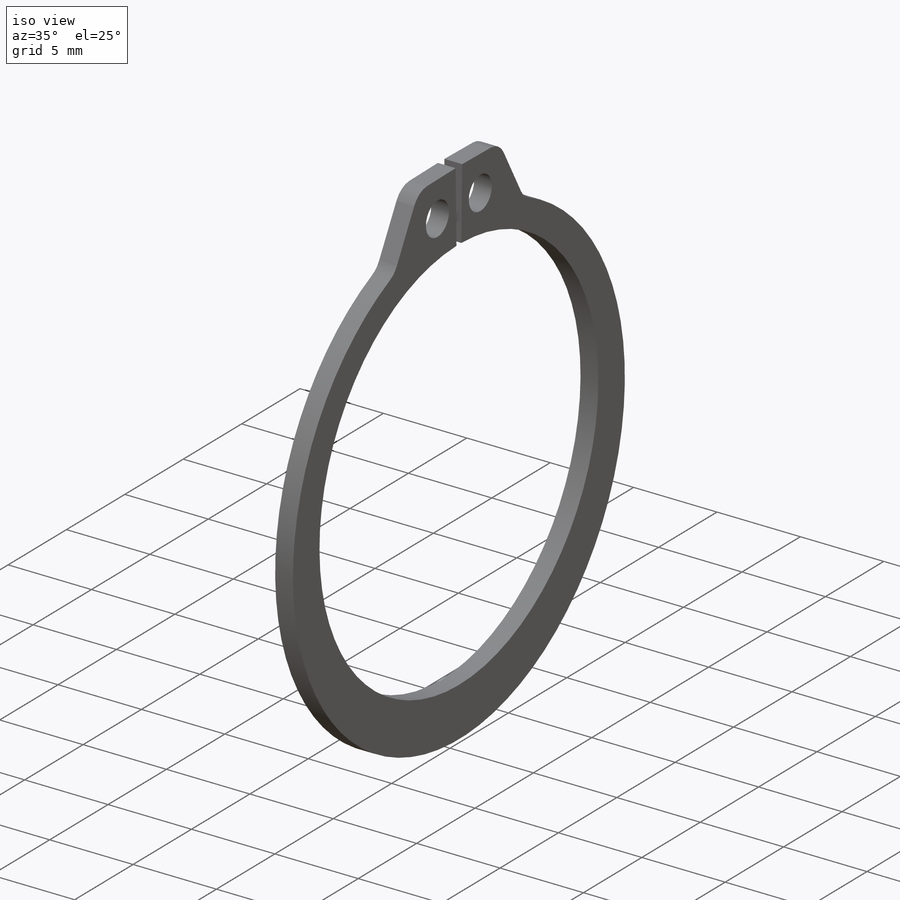
[diagram: iso view]
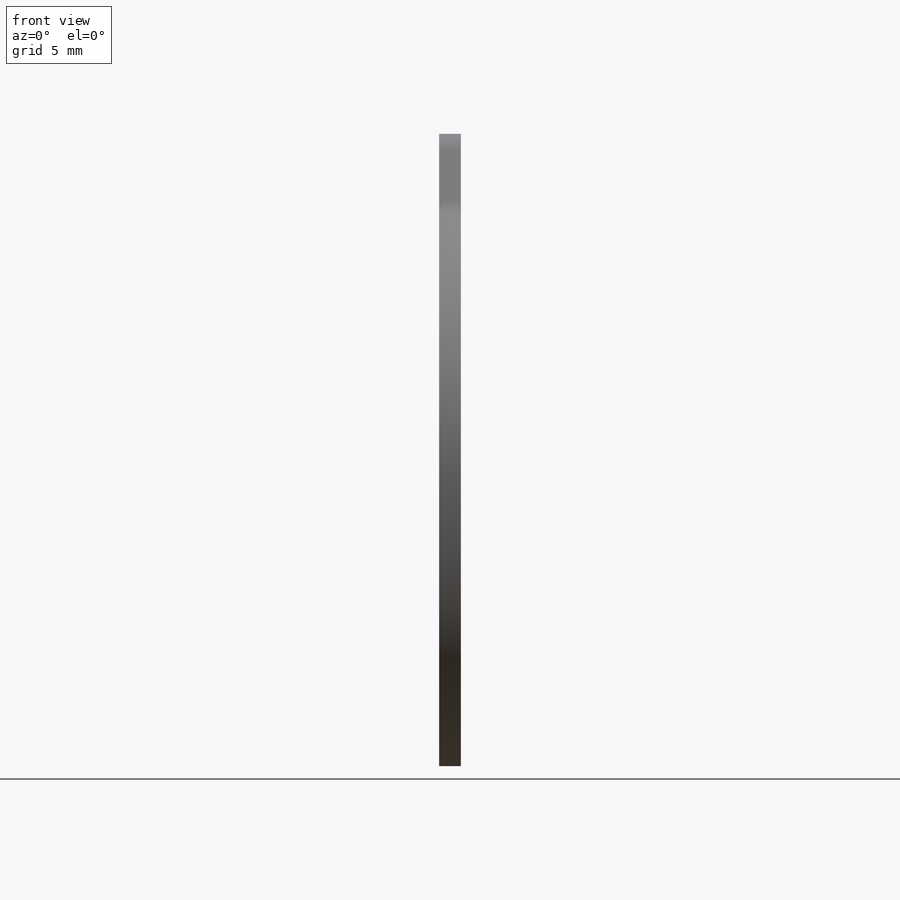
[diagram: front view]
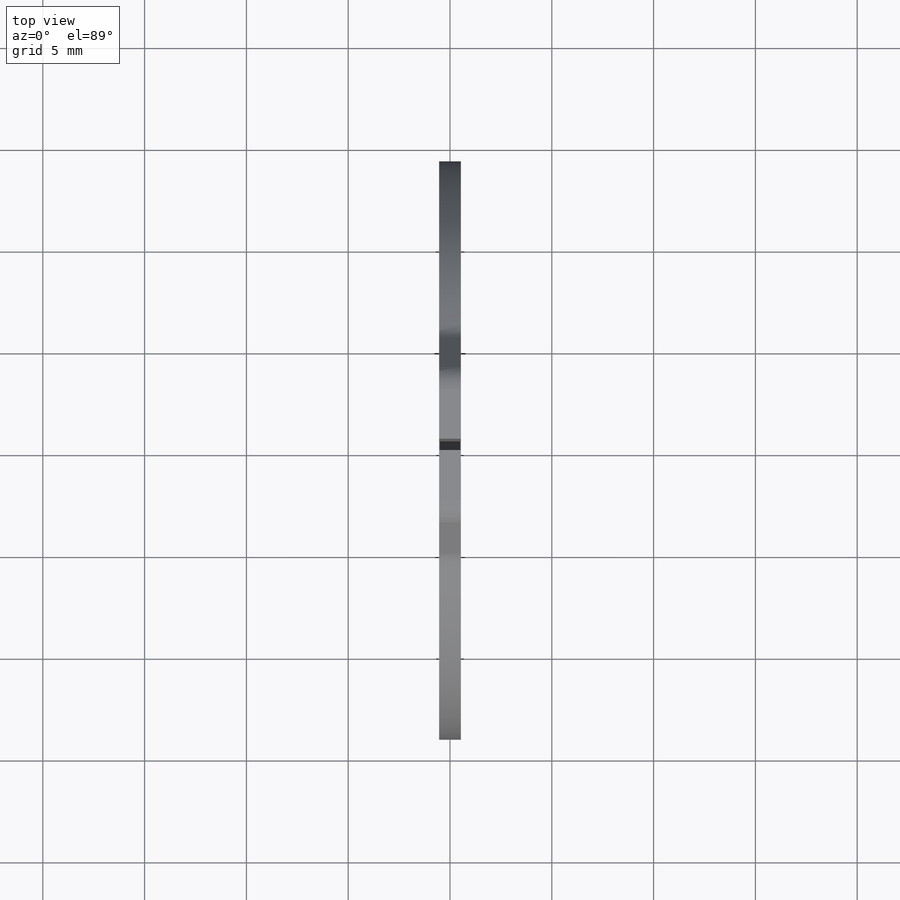
[diagram: top view]
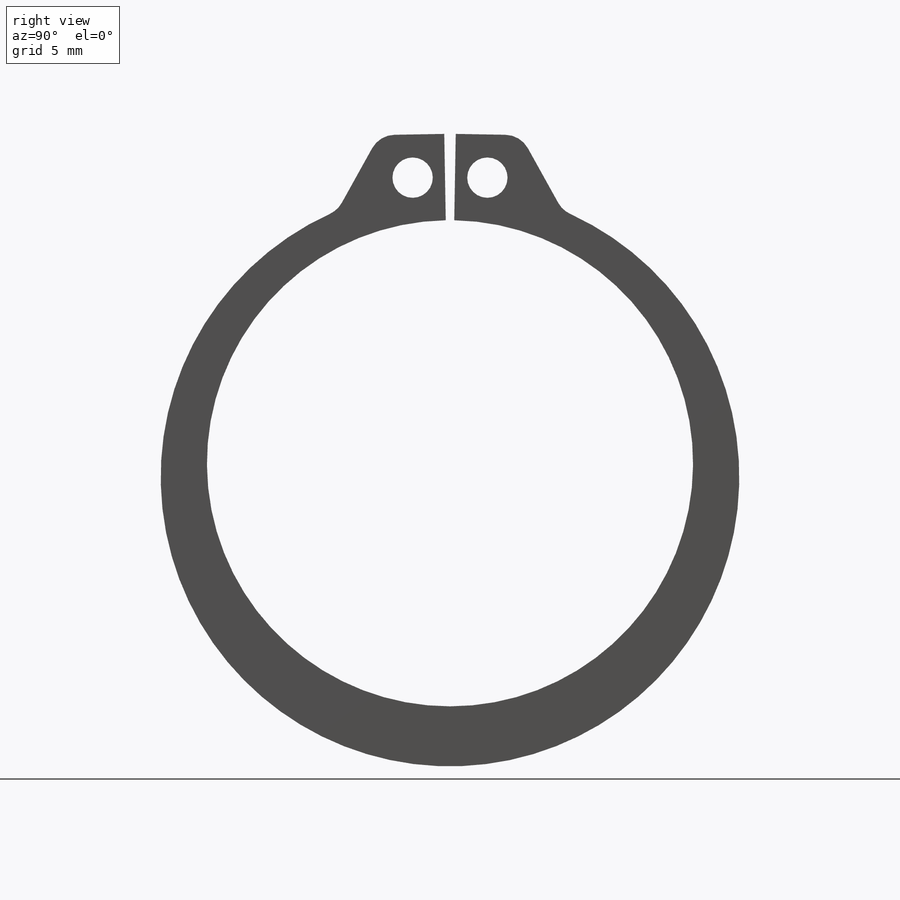
[diagram: right view]
SOLIDWORKS PART (.sldprt)
format: sldprt  version: not decoded by parser v0  size: 355,328 bytes
history: native  units: mm
features: sketch x2, material x1, extrude x1, fillet x1, revolve x1, delete_body x1 (+11 scaffold rows collapsed)
feature tree (18):
  scaffold x11  (default folders/planes/origin — collapsed)
  material  "Cast Carbon Steel"
  sketch  "Sketch1"  dims[c1.A=23.876mm c1.L=65.659mm c2.L=18.669mm c2.Hole=1.9812mm c3.L=289.56mm c4.L=294.64mm c5.L=35.052mm c5.Smin=1.651mm c5.Smax=2.9464mm c5.H=4.2418mm c5.D1=~8.028579mm c6.D1=60.0deg c7.D1=~14.734659mm c8.D1=60.0deg c9.D1=~12.418379mm c10.D1=60.0deg c11.D1=~7.967052mm c12.D1=~5.305922deg c13.D1=~7.95677mm c14.D1=~7.875802deg c15.D1=~14.213573mm c16.D1=65.0deg c17.D1=~14.805637mm c18.D1=~86.929987deg c19.D1=4.064mm c20.D1=45.0deg c21.D1=~14.706012mm c22.D1=75.0deg c22.D2=23.368mm c22.Angle=1.0deg c23.D1=~11.505789mm c24.D1=60.0deg c25.D1=18.669mm c26.D1=50.0deg c27.D1=118.8085mm c27.Angle=1.0deg c27.D2=~18.666157mm c28.D2=60.0deg c29.D2=18.669mm c30.D2=60.0deg c30.D1=~2.51109mm c31.D1=75.0deg c31.D2=2.032mm c32.D2=35.0deg c33.D2=~3.18135mm c33.D1=2.032mm c33.Angle=1.0deg]
  extrude  "Extrude1"  Depth=1.0668mm
  fillet  "Fillet1"  Radius=1.2827mm
  sketch  "Sketch2"  dims[c1.Dg=23.876mm c1.Ds=25.4mm c1.W=1.1684mm c1.D1=~126.084577mm c2.D1=45.0deg c2.D2=21.336mm c2.D3=5.334mm c3.D1=~7.08425mm c4.D1=45.0deg]
  revolve  "Revolve1"  Angle=360deg
  delete_body  "Body-Delete1"
decode coverage: 5 of 6 modeling features carry decoded parameters
note: ~ marks probable driven/reference dimensions
note: suppression state not decoded; provenance and decode notes live in map.json
